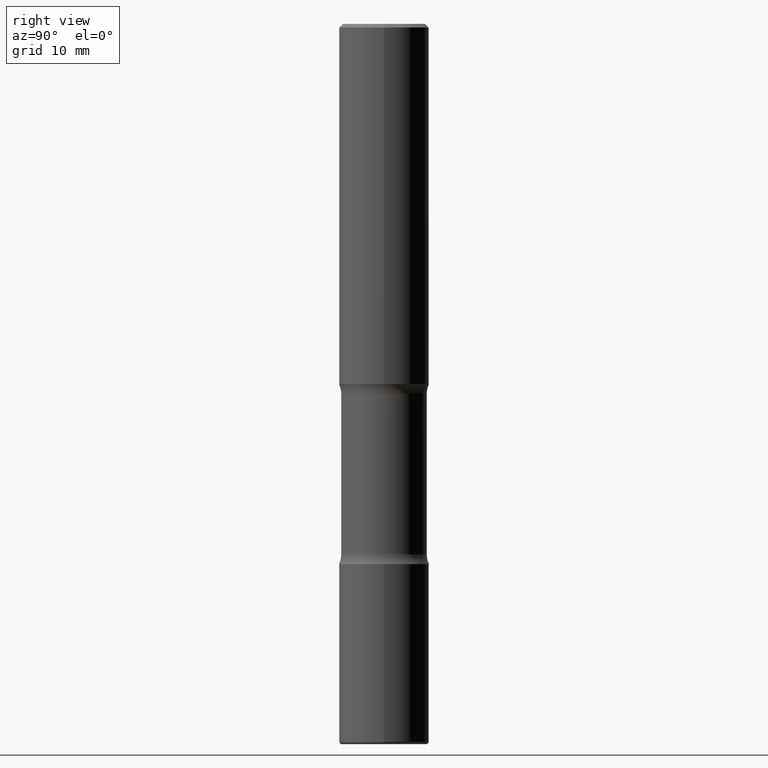
[diagram: clean part render]
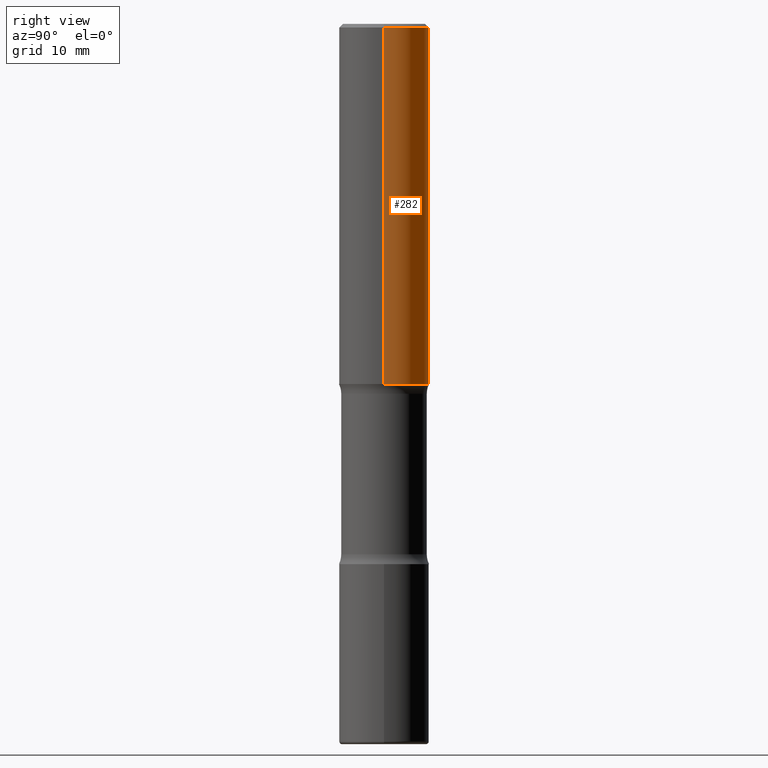
[diagram: same view with one face highlighted and labeled with its STEP entity id]
A machine part, right view. The second image highlights one B-rep face of the part: STEP entity #282.
In plain terms, the highlighted cylindrical surface (partial cylindrical patch) has radius 6.35 mm, axis along (-0, 0, 1).
Its self-contained STEP definition (entity closure, byte-faithful):
#55 = ORIENTED_EDGE ( 'NONE', *, *, #305, .F. ) ;
#57 = ORIENTED_EDGE ( 'NONE', *, *, #165, .F. ) ;
#58 = VECTOR ( 'NONE', #511, 39.37007874015748143 ) ;
#70 = EDGE_CURVE ( 'NONE', #373, #546, #188, .T. ) ;
#84 = CARTESIAN_POINT ( 'NONE',  ( 4.890937612370273194E-29, -6.982962677686291165E-15, -2.000000000000000000 ) ) ;
#144 = CARTESIAN_POINT ( 'NONE',  ( 0.2499999999999999167, -1.784954126219745400E-15, -0.02000000000000006981 ) ) ;
#163 = ORIENTED_EDGE ( 'NONE', *, *, #438, .T. ) ;
#165 = EDGE_CURVE ( 'NONE', #460, #546, #355, .T. ) ;
#176 = AXIS2_PLACEMENT_3D ( 'NONE', #425, #469, #264 ) ;
#181 = VERTEX_POINT ( 'NONE', #528 ) ;
#188 = LINE ( 'NONE', #241, #329 ) ;
#197 = DIRECTION ( 'NONE',  ( 1.000000000000000000, -6.982962677686267499E-15, 0.000000000000000000 ) ) ;
#218 = CYLINDRICAL_SURFACE ( 'NONE', #176, 0.2500000000000000555 ) ;
#224 = CIRCLE ( 'NONE', #301, 0.2500000000000001665 ) ;
#234 = CARTESIAN_POINT ( 'NONE',  ( 4.890937612370289799E-31, -6.982962677686315028E-17, -0.02000000000000006981 ) ) ;
#235 = DIRECTION ( 'NONE',  ( -2.445468806185136597E-29, 3.491481338843145583E-15, 1.000000000000000000 ) ) ;
#241 = CARTESIAN_POINT ( 'NONE',  ( -0.2500000000000000555, 1.776356839400250859E-15, -1.229733772563726866E-29 ) ) ;
#248 = CARTESIAN_POINT ( 'NONE',  ( -0.2499999999999999167, 1.675911042644703182E-15, -0.02000000000000006981 ) ) ;
#260 = FACE_OUTER_BOUND ( 'NONE', #319, .T. ) ;
#264 = DIRECTION ( 'NONE',  ( 1.000000000000000000, -6.982962677686267499E-15, 4.876176775795935793E-29 ) ) ;
#277 = DIRECTION ( 'NONE',  ( 1.000000000000000000, -6.982962677686265922E-15, 0.000000000000000000 ) ) ;
#282 = ADVANCED_FACE ( 'NONE', ( #260 ), #218, .T. ) ;
#301 = AXIS2_PLACEMENT_3D ( 'NONE', #84, #235, #277 ) ;
#305 = EDGE_CURVE ( 'NONE', #181, #460, #393, .T. ) ;
#319 = EDGE_LOOP ( 'NONE', ( #163, #517, #57, #55 ) ) ;
#329 = VECTOR ( 'NONE', #361, 39.37007874015748143 ) ;
#355 = CIRCLE ( 'NONE', #515, 0.2499999999999999167 ) ;
#361 = DIRECTION ( 'NONE',  ( -2.445468806185136877E-29, 3.491481338843145188E-15, 1.000000000000000000 ) ) ;
#373 = VERTEX_POINT ( 'NONE', #404 ) ;
#393 = LINE ( 'NONE', #426, #58 ) ;
#404 = CARTESIAN_POINT ( 'NONE',  ( -0.2500000000000001665, -1.750039312831323809E-15, -2.000000000000000000 ) ) ;
#425 = CARTESIAN_POINT ( 'NONE',  ( 0.000000000000000000, 0.000000000000000000, 0.000000000000000000 ) ) ;
#426 = CARTESIAN_POINT ( 'NONE',  ( 0.2500000000000000555, -1.745740669421567269E-15, 1.219044193948984228E-29 ) ) ;
#438 = EDGE_CURVE ( 'NONE', #181, #373, #224, .T. ) ;
#443 = DIRECTION ( 'NONE',  ( -2.445468806185136597E-29, 3.491481338843145583E-15, 1.000000000000000000 ) ) ;
#460 = VERTEX_POINT ( 'NONE', #144 ) ;
#469 = DIRECTION ( 'NONE',  ( -2.445468806185136597E-29, 3.491481338843145583E-15, 1.000000000000000000 ) ) ;
#511 = DIRECTION ( 'NONE',  ( -2.445468806185136877E-29, 3.491481338843145188E-15, 1.000000000000000000 ) ) ;
#515 = AXIS2_PLACEMENT_3D ( 'NONE', #234, #443, #197 ) ;
#517 = ORIENTED_EDGE ( 'NONE', *, *, #70, .T. ) ;
#528 = CARTESIAN_POINT ( 'NONE',  ( 0.2500000000000001665, -8.728703347107858632E-15, -2.000000000000000000 ) ) ;
#546 = VERTEX_POINT ( 'NONE', #248 ) ;